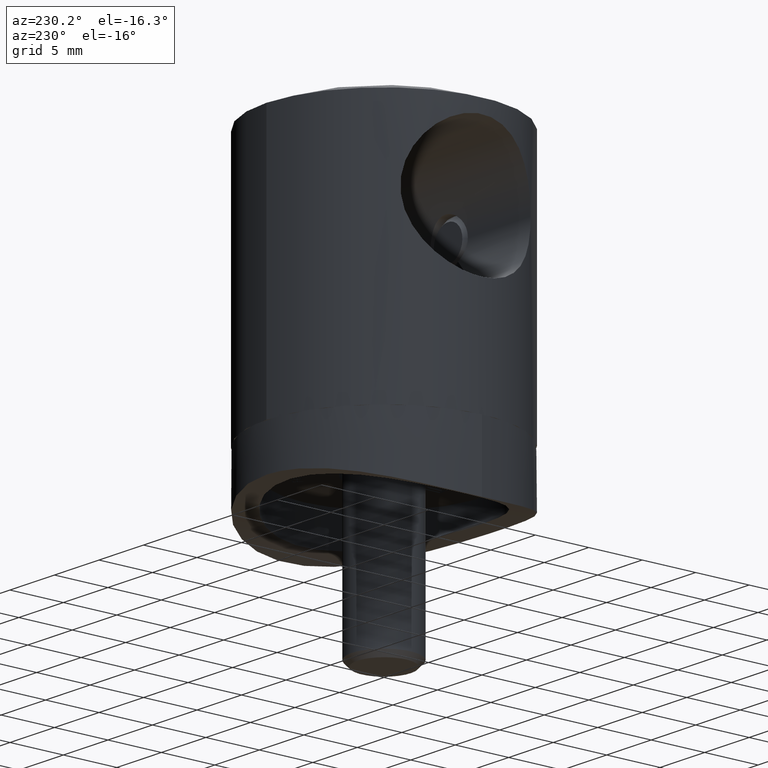
[diagram: clean part render]
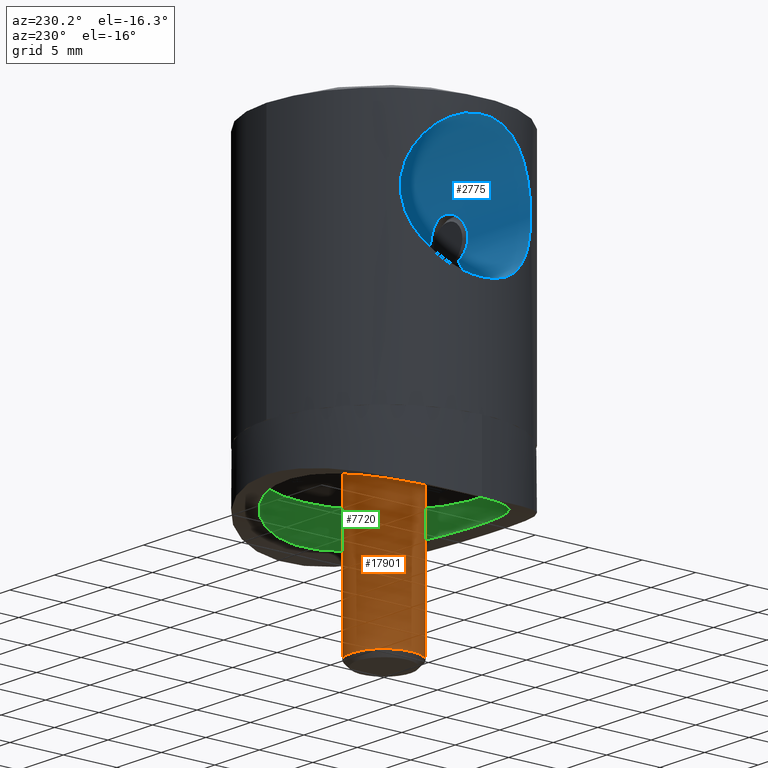
[diagram: same view with three faces highlighted in distinct colors, each labeled with its STEP entity id]
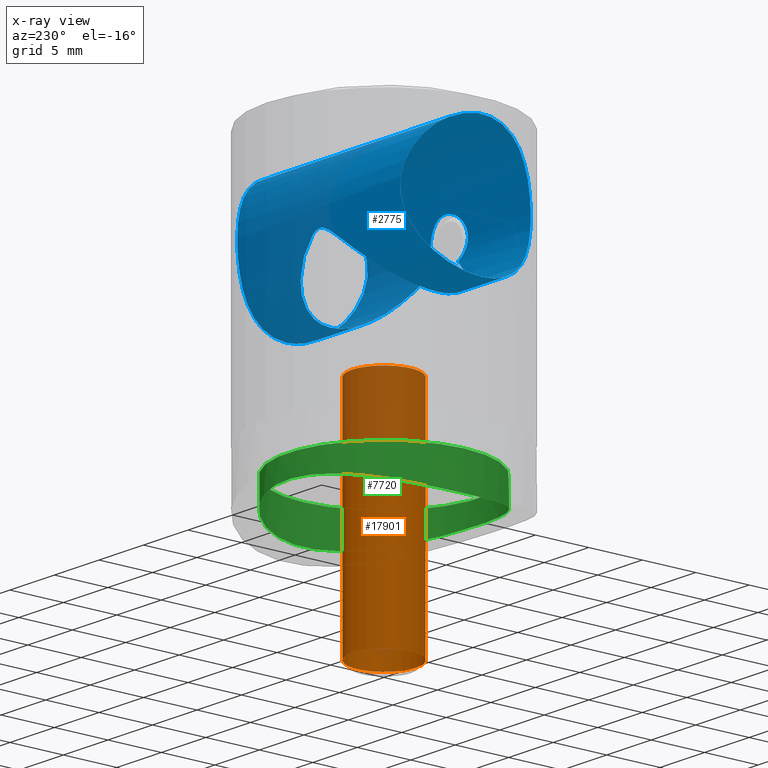
[diagram: x-ray of the same camera — body ghosted, the three highlighted faces saturated]
A machine part, auxiliary view with three faces highlighted in distinct colors.
The next image is the same camera in x-ray (body ghosted, the three faces saturated) — at least one of them is partly hidden behind the body in this view.
Their STEP definitions:

[orange] entity #17901 — the highlighted cylindrical surface (bore or boss wall) has radius 3 mm, axis along (-0, -0, -1).
#2862 = AXIS2_PLACEMENT_3D ( 'NONE', #20317, #20469, #10500 ) ;
#4823 = EDGE_LOOP ( 'NONE', ( #9274 ) ) ;
#9274 = ORIENTED_EDGE ( 'NONE', *, *, #15070, .T. ) ;
#9305 = AXIS2_PLACEMENT_3D ( 'NONE', #17931, #21491, #11526 ) ;
#9837 = CARTESIAN_POINT ( 'NONE',  ( -4.814824860968089633E-32, -11.99999999999999645, -3.000000000000008882 ) ) ;
#10500 = DIRECTION ( 'NONE',  ( 0.000000000000000000, 0.000000000000000000, -1.000000000000000000 ) ) ;
#11201 = CARTESIAN_POINT ( 'NONE',  ( 0.000000000000000000, 9.199999999999999289, -3.000000000000007994 ) ) ;
#11526 = DIRECTION ( 'NONE',  ( 0.000000000000000000, 0.000000000000000000, -1.000000000000000000 ) ) ;
#11891 = VERTEX_POINT ( 'NONE', #11201 ) ;
#11960 = AXIS2_PLACEMENT_3D ( 'NONE', #13069, #19777, #14968 ) ;
#12686 = FACE_OUTER_BOUND ( 'NONE', #21534, .T. ) ;
#13002 = CIRCLE ( 'NONE', #2862, 3.000000000000008882 ) ;
#13069 = CARTESIAN_POINT ( 'NONE',  ( 0.000000000000000000, 9.199999999999999289, -1.444447458290426890E-30 ) ) ;
#13454 = VERTEX_POINT ( 'NONE', #9837 ) ;
#13455 = CYLINDRICAL_SURFACE ( 'NONE', #9305, 3.000000000000008882 ) ;
#14149 = ORIENTED_EDGE ( 'NONE', *, *, #15822, .T. ) ;
#14968 = DIRECTION ( 'NONE',  ( 0.000000000000000000, 0.000000000000000000, -1.000000000000000000 ) ) ;
#15070 = EDGE_CURVE ( 'NONE', #13454, #13454, #13002, .T. ) ;
#15822 = EDGE_CURVE ( 'NONE', #11891, #11891, #18971, .T. ) ;
#17901 = ADVANCED_FACE ( 'NONE', ( #18413, #12686 ), #13455, .T. ) ;
#17931 = CARTESIAN_POINT ( 'NONE',  ( 4.814824860968089633E-32, -12.50000000000000355, 1.251854463851703304E-30 ) ) ;
#18413 = FACE_OUTER_BOUND ( 'NONE', #4823, .T. ) ;
#18971 = CIRCLE ( 'NONE', #11960, 3.000000000000007994 ) ;
#19777 = DIRECTION ( 'NONE',  ( 0.000000000000000000, -1.000000000000000000, 9.860761315262647568E-32 ) ) ;
#20317 = CARTESIAN_POINT ( 'NONE',  ( -4.814824860968089633E-32, -11.99999999999999645, 1.251854463851703304E-30 ) ) ;
#20469 = DIRECTION ( 'NONE',  ( -0.000000000000000000, 1.000000000000000000, -9.860761315262647568E-32 ) ) ;
#21491 = DIRECTION ( 'NONE',  ( 0.000000000000000000, -1.000000000000000000, 9.860761315262647568E-32 ) ) ;
#21534 = EDGE_LOOP ( 'NONE', ( #14149 ) ) ;

[blue] entity #2775 — the highlighted cylindrical surface (bore or boss wall) has radius 6.1 mm, axis along (1, 0, 0).
#620 = CARTESIAN_POINT ( 'NONE',  ( -9.404246883826662184, -5.706848822141821209, 18.56371187619918572 ) ) ;
#656 = CARTESIAN_POINT ( 'NONE',  ( 10.99999999999999822, 0.4119544153468484571, 10.29999999999999538 ) ) ;
#694 = CARTESIAN_POINT ( 'NONE',  ( -9.823416292433382324, -4.951332716768895637, 12.83170122485886644 ) ) ;
#727 = CARTESIAN_POINT ( 'NONE',  ( 9.369915670549829656, -5.762779879413711726, 18.41008764505288298 ) ) ;
#764 = CARTESIAN_POINT ( 'NONE',  ( -9.287385638928906673, -5.895229317790466439, 14.78182133336428628 ) ) ;
#799 = CARTESIAN_POINT ( 'NONE',  ( 9.154733802318576252, -6.098430320488784417, 16.82884321834455932 ) ) ;
#871 = B_SPLINE_CURVE_WITH_KNOTS ( 'NONE', 3,
 ( #17434, #17208, #14162, #10674, #14088, #17283, #18888, #9006, #20579, #12202, #20652, #9154, #694, #12337, #15836, #5893, #764, #2220, #17500, #8935, #8856, #10817, #3901, #15550, #10607, #5741, #620, #12483, #2364, #17358, #7416, #19022, #12416, #2434, #4559, #19392, #20857, #19243, #10889, #14374, #15899, #16124, #14305, #9438, #16187, #905, #7634, #1186, #9513, #16055, #6107, #2857, #10956, #12755, #19173, #4348, #21067, #17787, #9225, #11171, #11099, #12549, #4269, #2582, #5964, #14518, #2790, #17649, #4416, #975, #6178, #9301, #12825, #1106, #12623, #6248, #7706, #14446, #19314, #4477, #7837, #17713, #2647, #19461 ),
 .UNSPECIFIED., .T., .F.,
 ( 4, 2, 2, 2, 2, 2, 2, 2, 2, 2, 2, 2, 2, 2, 2, 2, 2, 2, 2, 2, 2, 2, 2, 2, 2, 2, 2, 2, 2, 2, 2, 2, 2, 2, 2, 2, 2, 2, 2, 2, 2, 4 ),
 ( 0.000000000000000000, 0.001216736210685103207, 0.002433472421370206414, 0.003650208632055309838, 0.004866944842740412829, 0.005475312948082965842, 0.006083681053425518855, 0.007300417264110619676, 0.008517153474795719631, 0.009733889685480822188, 0.01034225779082337433, 0.01095062589616592474, 0.01155899400150847689, 0.01216736210685102730, 0.01338409831753611945, 0.01399246642287865945, 0.01460083452822120119, 0.01581757073890628987, 0.01703430694959138028, 0.01764267505493392549, 0.01825104316027647069, 0.01946777937096155764, 0.02007614747630410285, 0.02068451558164664805, 0.02129288368698918979, 0.02190125179233173153, 0.02311798800301681847, 0.02433472421370190195, 0.02555146042438699236, 0.02676819663507207930, 0.02737656474041462451, 0.02798493284575716972, 0.02920166905644225666, 0.03041840526712734707, 0.03163514147781242708, 0.03285187768849751749, 0.03406861389918260097, 0.03528535010986768444, 0.03589371821521022965, 0.03650208632055277486, 0.03771882253123785833, 0.03893555874192294181 ),
 .UNSPECIFIED. ) ;
#873 = CARTESIAN_POINT ( 'NONE',  ( 10.88034175087271649, 1.629824696895270320, 22.28170272155429288 ) ) ;
#905 = CARTESIAN_POINT ( 'NONE',  ( -10.97324043956127859, 0.7936138331962050430, 22.45163438274044765 ) ) ;
#944 = CARTESIAN_POINT ( 'NONE',  ( 9.186070511604013333, 6.051171545997144463, 17.19691923427019020 ) ) ;
#960 = CARTESIAN_POINT ( 'NONE',  ( 0.7661013249264022607, 5.954079012048654640, 15.07060193137590609 ) ) ;
#975 = CARTESIAN_POINT ( 'NONE',  ( -9.542046598227903687, 5.475560630793908423, 13.68158294172838296 ) ) ;
#1009 = CARTESIAN_POINT ( 'NONE',  ( 10.34725143670187641, -3.748763762359414553, 11.57160730895324185 ) ) ;
#1026 = CARTESIAN_POINT ( 'NONE',  ( -5.833782839444026536, -1.417998730812822794, 10.46342172039293494 ) ) ;
#1094 = CARTESIAN_POINT ( 'NONE',  ( 0.1664089112603113485, 5.998586653625032739, 15.29203420907048283 ) ) ;
#1101 = CARTESIAN_POINT ( 'NONE',  ( 1.811792167402790366, -6.006687632219922079, 17.46737169745549778 ) ) ;
#1106 = CARTESIAN_POINT ( 'NONE',  ( -10.23201466657478242, 4.049143934664146904, 11.82103939613443977 ) ) ;
#1168 = CARTESIAN_POINT ( 'NONE',  ( -3.636098034188537387, -4.784718748379321873, 12.60180303829232606 ) ) ;
#1179 = CARTESIAN_POINT ( 'NONE',  ( 1.404888031916986746, -5.894433118325748566, 17.97576650795928899 ) ) ;
#1186 = CARTESIAN_POINT ( 'NONE',  ( -10.91341900764948925, 1.391812421171598091, 22.34254261676390385 ) ) ;
#1194 = CARTESIAN_POINT ( 'NONE',  ( 1.264911064067336444, -5.865151319446074041, 14.72369453857597676 ) ) ;
#1240 = CARTESIAN_POINT ( 'NONE',  ( 2.678942672394189817, 5.378707453403088756, 13.50570936899195118 ) ) ;
#1315 = CARTESIAN_POINT ( 'NONE',  ( -2.061975679411623741, -6.086996045277349054, 15.98735336462845247 ) ) ;
#1397 = CARTESIAN_POINT ( 'NONE',  ( -2.088524507727446800, -6.096034286308175787, 16.64511596994807263 ) ) ;
#1442 = CARTESIAN_POINT ( 'NONE',  ( 5.902884294256615760, 1.155421326008484684, 10.39550549845728789 ) ) ;
#1854 = B_SPLINE_CURVE_WITH_KNOTS ( 'NONE', 3,
 ( #8890, #656, #2181, #5405, #2331, #2257, #3871, #20543, #2103, #5635, #17249, #7310, #18924, #10642, #12016, #13763, #7089, #3719, #15366, #17468, #2551, #944, #5776, #7382, #7599, #17396, #15721, #10994, #12587, #20897, #17612, #7452, #4159, #16018, #15798, #2615, #19059, #20970, #12660, #873, #14055, #9047, #17320, #10708, #15873, #10853, #9120, #5853, #18989, #20686, #14273, #7671, #9337, #4312, #15942, #7528, #19133, #4085, #12377, #10784, #727, #20757, #5931, #17546, #799, #6004, #19212, #9192, #14335, #9268, #2401, #12449, #20828, #19282, #1009, #14204, #2475, #2685, #4386, #14127, #19353, #17754, #14555, #4596 ),
 .UNSPECIFIED., .T., .F.,
 ( 4, 2, 2, 2, 2, 2, 2, 2, 2, 2, 2, 2, 2, 2, 2, 2, 2, 2, 2, 2, 2, 2, 2, 2, 2, 2, 2, 2, 2, 2, 2, 2, 2, 2, 2, 2, 2, 2, 2, 2, 2, 4 ),
 ( 0.000000000000000000, 0.001216736210685062875, 0.002433472421370125750, 0.003650208632055187540, 0.004866944842740248897, 0.005475312948082781093, 0.006083681053425311555, 0.007300417264110382019, 0.008517153474795452484, 0.009733889685480523815, 0.01034225779082305861, 0.01095062589616559688, 0.01155899400150813168, 0.01216736210685066648, 0.01338409831753574648, 0.01399246642287828822, 0.01460083452822082996, 0.01581757073890592905, 0.01703430694959102640, 0.01764267505493357507, 0.01825104316027612375, 0.01946777937096122110, 0.02007614747630376978, 0.02068451558164631846, 0.02129288368698886713, 0.02190125179233141581, 0.02311798800301651316, 0.02433472421370161051, 0.02555146042438671133, 0.02676819663507180522, 0.02737656474041436083, 0.02798493284575690951, 0.02920166905644202421, 0.03041840526712714238, 0.03163514147781225361, 0.03285187768849736484, 0.03406861389918248301, 0.03528535010986760118, 0.03589371821521016026, 0.03650208632055271241, 0.03771882253123782364, 0.03893555874192293487 ),
 .UNSPECIFIED. ) ;
#2005 = CARTESIAN_POINT ( 'NONE',  ( -2.513309521868856145, -5.457960451530768253, 13.65982984228988961 ) ) ;
#2103 = CARTESIAN_POINT ( 'NONE',  ( 10.23523940358923667, 4.040947010503002979, 11.81391594917569066 ) ) ;
#2154 = CARTESIAN_POINT ( 'NONE',  ( -10.99999999999999822, 0.000000000000000000, 16.39999999999999858 ) ) ;
#2181 = CARTESIAN_POINT ( 'NONE',  ( 10.97695157601236104, 0.8154917404544913540, 10.34128971045530676 ) ) ;
#2220 = CARTESIAN_POINT ( 'NONE',  ( -9.182824149353340459, -6.056814456260994461, 15.57100690659151532 ) ) ;
#2257 = CARTESIAN_POINT ( 'NONE',  ( 10.66142031955350156, 2.734231561115276765, 10.93252429363031553 ) ) ;
#2331 = CARTESIAN_POINT ( 'NONE',  ( 10.82349510489186706, 1.998464203924865901, 10.62285073282916592 ) ) ;
#2364 = CARTESIAN_POINT ( 'NONE',  ( -9.647514933004700310, -5.290201444760916694, 19.46247388205960860 ) ) ;
#2401 = CARTESIAN_POINT ( 'NONE',  ( 9.648512081601323231, -5.288360497444984709, 13.33447340568116957 ) ) ;
#2434 = CARTESIAN_POINT ( 'NONE',  ( -10.22984273932647881, -4.054541376369452443, 20.97407856064159404 ) ) ;
#2475 = CARTESIAN_POINT ( 'NONE',  ( 10.55980625606058787, -3.085983629272203377, 11.13443178477246676 ) ) ;
#2504 = CARTESIAN_POINT ( 'NONE',  ( 1.841419818001106767, -6.014671674399155954, 15.36712081795135454 ) ) ;
#2551 = CARTESIAN_POINT ( 'NONE',  ( 9.159751136064906873, 6.090938158330286178, 16.79016624204475150 ) ) ;
#2582 = CARTESIAN_POINT ( 'NONE',  ( -9.182846360408928987, 6.056809541581210432, 17.23151101186771328 ) ) ;
#2615 = CARTESIAN_POINT ( 'NONE',  ( 10.56075521959791885, 3.096678220883582355, 21.67043277127627832 ) ) ;
#2634 = CARTESIAN_POINT ( 'NONE',  ( 1.451721868584812558, 5.824105846830126332, 14.58084361014226005 ) ) ;
#2647 = CARTESIAN_POINT ( 'NONE',  ( -11.00000000000000000, 0.4119544153468409076, 10.29999999999999893 ) ) ;
#2685 = CARTESIAN_POINT ( 'NONE',  ( 10.65567692228155039, -2.736668129976453034, 10.94471346896226294 ) ) ;
#2707 = CARTESIAN_POINT ( 'NONE',  ( -5.404072180346550347, 2.634859264747150043, 10.88524980136711129 ) ) ;
#2731 = CARTESIAN_POINT ( 'NONE',  ( 1.600712823535374696, -5.792730449506010793, 14.47030434767153295 ) ) ;
#2773 = CARTESIAN_POINT ( 'NONE',  ( -5.781654944826906117, -1.616613241820927360, 10.51464520929871505 ) ) ;
#2775 = ADVANCED_FACE ( 'NONE', ( #21539, #8025, #9591 ), #5152, .F. ) ;
#2790 = CARTESIAN_POINT ( 'NONE',  ( -9.179891148193682682, 6.061232615172921889, 15.60271832034515604 ) ) ;
#2841 = CARTESIAN_POINT ( 'NONE',  ( -4.394411648217268151, -4.088980755355672514, 11.87010875707530033 ) ) ;
#2850 = CARTESIAN_POINT ( 'NONE',  ( -2.098627926073697303, -6.099527671785687666, 16.53369559396773170 ) ) ;
#2857 = CARTESIAN_POINT ( 'NONE',  ( -10.66475748890668918, 2.721688767266851716, 21.87398493998483318 ) ) ;
#2863 = EDGE_CURVE ( 'NONE', #14779, #14779, #1854, .T. ) ;
#2867 = CARTESIAN_POINT ( 'NONE',  ( 2.519141720066565782, -5.455323266381119751, 13.65448253211364005 ) ) ;
#2916 = CARTESIAN_POINT ( 'NONE',  ( -5.566520937633480770, 2.276123881821266348, 10.72588678268597562 ) ) ;
#2999 = CARTESIAN_POINT ( 'NONE',  ( -0.4395679350782021877, -5.740271456021377894, 18.46502818225347653 ) ) ;
#3168 = EDGE_LOOP ( 'NONE', ( #16275 ) ) ;
#3589 = B_SPLINE_CURVE_WITH_KNOTS ( 'NONE', 3,
 ( #17640, #9363, #16047, #2504, #20851, #10881, #7626, #19236, #11304, #16403, #9718, #16325, #6384, #12970, #6454, #1101, #14582, #17857, #1179, #17994, #21060, #9506, #4761, #18073, #2999, #12749, #8113, #21125, #9428, #14441, #19672, #11163, #21343, #7830, #11381, #1397, #2850, #8047, #6172, #1315, #12894, #14655, #11093, #21278 ),
 .UNSPECIFIED., .F., .F.,
 ( 4, 2, 2, 2, 2, 2, 2, 2, 2, 2, 2, 2, 2, 2, 2, 2, 2, 2, 2, 2, 2, 4 ),
 ( 0.001359203220729802075, 0.002016167456919628568, 0.002673131693109455278, 0.003001613811204363429, 0.003330095929299271146, 0.003658578047394179730, 0.003987060165489087447, 0.004315542283583996032, 0.004644024401678903749, 0.005300988637868728724, 0.005957952874058551965, 0.006614917110248376940, 0.007271881346438201915, 0.007928845582628024288, 0.008585809818817848396, 0.008914291936912762185, 0.009242774055007674239, 0.009571256173102586293, 0.009899738291197498347, 0.01022822040929241040, 0.01055670252738732245, 0.01187063099976695853 ),
 .UNSPECIFIED. ) ;
#3719 = CARTESIAN_POINT ( 'NONE',  ( 9.182824149353340459, 6.056814456260994461, 15.57100690659150999 ) ) ;
#3813 = CARTESIAN_POINT ( 'NONE',  ( 5.995776451328667989, 0.3099123428654444456, 10.30415429417565676 ) ) ;
#3871 = CARTESIAN_POINT ( 'NONE',  ( 10.56516037208887582, 3.081656113116342688, 11.12078256614181626 ) ) ;
#3901 = CARTESIAN_POINT ( 'NONE',  ( -9.205781148332752295, -6.021279925512385667, 17.39743835238009950 ) ) ;
#3947 = CARTESIAN_POINT ( 'NONE',  ( -1.019037226394219342, 5.915345745975993275, 14.90492701504486561 ) ) ;
#4035 = ORIENTED_EDGE ( 'NONE', *, *, #2863, .T. ) ;
#4085 = CARTESIAN_POINT ( 'NONE',  ( 9.655843362379464168, -5.275096090437352281, 19.48856493924065703 ) ) ;
#4159 = CARTESIAN_POINT ( 'NONE',  ( 10.05375444080992331, 4.465900659990698962, 20.55976037867542061 ) ) ;
#4269 = CARTESIAN_POINT ( 'NONE',  ( -9.262708643723195578, 5.933349042232535453, 17.83071913368763717 ) ) ;
#4312 = CARTESIAN_POINT ( 'NONE',  ( 10.35569616419128813, -3.725345759223086972, 21.24638000732665333 ) ) ;
#4331 = CARTESIAN_POINT ( 'NONE',  ( 2.385812162248570178, 5.514868211023974176, 13.77669042793656828 ) ) ;
#4348 = CARTESIAN_POINT ( 'NONE',  ( -10.00363043224886361, 4.584473309947989961, 20.44285449540664956 ) ) ;
#4374 = CARTESIAN_POINT ( 'NONE',  ( 6.002658118569156542, -0.1160880103349958004, 10.29738546987162984 ) ) ;
#4386 = CARTESIAN_POINT ( 'NONE',  ( 10.70011745089923139, -2.557856534737481979, 10.85862283480468271 ) ) ;
#4401 = CARTESIAN_POINT ( 'NONE',  ( -3.301266255638071190, 5.020780134672565787, 12.92163397531766478 ) ) ;
#4416 = CARTESIAN_POINT ( 'NONE',  ( -9.357734529854724315, 5.784913307303539476, 14.42355532554418573 ) ) ;
#4465 = CARTESIAN_POINT ( 'NONE',  ( 1.772379662049494264, 5.734664387072843539, 14.31597426755820379 ) ) ;
#4477 = CARTESIAN_POINT ( 'NONE',  ( -10.82153467679175840, 2.008721309774863073, 10.62652596293655805 ) ) ;
#4537 = CARTESIAN_POINT ( 'NONE',  ( -5.345947242857096882, -2.730846562301733282, 10.94208900441108945 ) ) ;
#4559 = CARTESIAN_POINT ( 'NONE',  ( -10.34600107115467971, -3.752229823401756370, 21.22572781584415935 ) ) ;
#4596 = CARTESIAN_POINT ( 'NONE',  ( 11.00000000000000000, 2.981555974335137194E-16, 10.29999999999999716 ) ) ;
#4761 = CARTESIAN_POINT ( 'NONE',  ( 0.2203795295326185788, -5.727184751572133692, 18.49984638675084980 ) ) ;
#5152 = CYLINDRICAL_SURFACE ( 'NONE', #20609, 6.100000000000001421 ) ;
#5405 = CARTESIAN_POINT ( 'NONE',  ( 10.88928147642777411, 1.606873239554577060, 10.50161415780659269 ) ) ;
#5635 = CARTESIAN_POINT ( 'NONE',  ( 10.05928916644563031, 4.453430819430040266, 12.22689457929945611 ) ) ;
#5648 = CARTESIAN_POINT ( 'NONE',  ( -4.805692951973780325, 3.597158703547618686, 11.47007651703236775 ) ) ;
#5741 = CARTESIAN_POINT ( 'NONE',  ( -9.362046769079295672, -5.775541901457289740, 18.37322836746237797 ) ) ;
#5776 = CARTESIAN_POINT ( 'NONE',  ( 9.205781148332754071, 6.021279925512389219, 17.39743835238009595 ) ) ;
#5853 = CARTESIAN_POINT ( 'NONE',  ( 10.91341900764949102, -1.391812421171597647, 22.34254261676390740 ) ) ;
#5860 = CARTESIAN_POINT ( 'NONE',  ( 5.853872938890667399, -1.378049250078571264, 10.44371644003604871 ) ) ;
#5893 = CARTESIAN_POINT ( 'NONE',  ( -9.364778303763204192, -5.773464504138156705, 14.39169695136983584 ) ) ;
#5931 = CARTESIAN_POINT ( 'NONE',  ( 9.262708643723190249, -5.933349042232532788, 17.83071913368764072 ) ) ;
#5964 = CARTESIAN_POINT ( 'NONE',  ( -9.154733802318572700, 6.098430320488782641, 16.82884321834455932 ) ) ;
#6004 = CARTESIAN_POINT ( 'NONE',  ( 9.152699255644686005, -6.101483401673095663, 16.01703893293870706 ) ) ;
#6020 = CARTESIAN_POINT ( 'NONE',  ( -4.694700180960722946, 3.740536793395724757, 11.57822801960869974 ) ) ;
#6093 = CARTESIAN_POINT ( 'NONE',  ( -1.992287078379852749, 5.661893515845267899, 14.12526147274774857 ) ) ;
#6107 = CARTESIAN_POINT ( 'NONE',  ( -10.78664010805816176, 2.164383443384269690, 22.10666010265788017 ) ) ;
#6162 = CARTESIAN_POINT ( 'NONE',  ( 0.05797874900376040475, 6.000668141377463627, 15.30364017751332817 ) ) ;
#6172 = CARTESIAN_POINT ( 'NONE',  ( -2.093736081883823541, -6.097828132484488073, 16.20432126434826259 ) ) ;
#6178 = CARTESIAN_POINT ( 'NONE',  ( -9.648512081601321455, 5.288360497444982045, 13.33447340568116957 ) ) ;
#6185 = CARTESIAN_POINT ( 'NONE',  ( 4.877393601296916792, -3.513269415216959679, 11.40038333103254153 ) ) ;
#6205 = VERTEX_POINT ( 'NONE', #16153 ) ;
#6233 = CARTESIAN_POINT ( 'NONE',  ( -0.4667924620966336646, 5.984804324095905237, 15.21602659811568259 ) ) ;
#6248 = CARTESIAN_POINT ( 'NONE',  ( -10.50807610336931397, 3.257306727324836171, 11.23869160819103996 ) ) ;
#6259 = CARTESIAN_POINT ( 'NONE',  ( 4.412337729448108981, -4.069675251550910033, 11.85271625671014029 ) ) ;
#6384 = CARTESIAN_POINT ( 'NONE',  ( 2.025586993270402925, -6.074695222667569894, 16.96475893698508131 ) ) ;
#6454 = CARTESIAN_POINT ( 'NONE',  ( 1.912532000604389992, -6.037837701241856259, 17.27412501683415158 ) ) ;
#6750 = EDGE_CURVE ( 'NONE', #11536, #14231, #8920, .T. ) ;
#7089 = CARTESIAN_POINT ( 'NONE',  ( 9.287385638928908449, 5.895229317790466439, 14.78182133336428272 ) ) ;
#7310 = CARTESIAN_POINT ( 'NONE',  ( 9.882311817479488170, 4.833099761158376140, 12.67314814702374726 ) ) ;
#7321 = CARTESIAN_POINT ( 'NONE',  ( -1.357182424432292978, 5.847034122529607636, 14.65679877961454736 ) ) ;
#7382 = CARTESIAN_POINT ( 'NONE',  ( 9.257007648696454538, 5.942224152987879648, 17.79307836241350316 ) ) ;
#7416 = CARTESIAN_POINT ( 'NONE',  ( -9.876850331807261796, -4.844238823729226873, 20.11236126726327456 ) ) ;
#7452 = CARTESIAN_POINT ( 'NONE',  ( 9.994595874194322604, 4.596398108278324734, 20.41514637220333839 ) ) ;
#7528 = CARTESIAN_POINT ( 'NONE',  ( 10.00363043224886717, -4.584473309947989073, 20.44285449540664246 ) ) ;
#7599 = CARTESIAN_POINT ( 'NONE',  ( 9.288523322039354824, 5.893058497745284896, 17.98819897613593710 ) ) ;
#7626 = CARTESIAN_POINT ( 'NONE',  ( 2.061537772462799012, -6.086847471753373817, 15.98519257118675974 ) ) ;
#7634 = CARTESIAN_POINT ( 'NONE',  ( -10.95673552425201969, 0.9948883876327735409, 22.42172331346568015 ) ) ;
#7671 = CARTESIAN_POINT ( 'NONE',  ( 10.66475748890669095, -2.721688767266846387, 21.87398493998482962 ) ) ;
#7688 = CARTESIAN_POINT ( 'NONE',  ( 4.769559754092274950, 3.644961848606244281, 11.50529522117300019 ) ) ;
#7692 = EDGE_LOOP ( 'NONE', ( #12053, #15998 ) ) ;
#7706 = CARTESIAN_POINT ( 'NONE',  ( -10.55980625606059320, 3.085983629272203377, 11.13443178477245787 ) ) ;
#7757 = CARTESIAN_POINT ( 'NONE',  ( -2.806376894923880094, -5.313295236498645657, 13.38721115035932741 ) ) ;
#7822 = CARTESIAN_POINT ( 'NONE',  ( -5.998444786203076085, 0.2514064993559285144, 10.30152971741273937 ) ) ;
#7830 = CARTESIAN_POINT ( 'NONE',  ( -2.024966505829224772, -6.074488205061602919, 16.96693568420365850 ) ) ;
#7837 = CARTESIAN_POINT ( 'NONE',  ( -10.88669551587766016, 1.625843207734907425, 10.50636876088165117 ) ) ;
#7893 = CARTESIAN_POINT ( 'NONE',  ( -2.736985555426589389, 5.349345952611728627, 13.45182069038133754 ) ) ;
#8025 = FACE_OUTER_BOUND ( 'NONE', #14962, .T. ) ;
#8047 = CARTESIAN_POINT ( 'NONE',  ( -2.101105937947260305, -6.100380710190159483, 16.31358517797543328 ) ) ;
#8113 = CARTESIAN_POINT ( 'NONE',  ( -1.052738289646268255, -5.820553186839066306, 18.22989329272534675 ) ) ;
#8229 = CARTESIAN_POINT ( 'NONE',  ( 5.994764174703636428, -0.3277982703724416913, 10.30515088502910714 ) ) ;
#8725 = CARTESIAN_POINT ( 'NONE',  ( -1.907797727893162376, -5.697926366024423039, 14.20193268732672642 ) ) ;
#8801 = DIRECTION ( 'NONE',  ( 0.000000000000000000, 0.000000000000000000, -1.000000000000000000 ) ) ;
#8856 = CARTESIAN_POINT ( 'NONE',  ( -9.159751136064906873, -6.090938158330281738, 16.79016624204474795 ) ) ;
#8890 = CARTESIAN_POINT ( 'NONE',  ( 11.00000000000000000, 2.981555974335137194E-16, 10.29999999999999716 ) ) ;
#8920 = B_SPLINE_CURVE_WITH_KNOTS ( 'NONE', 3,
 ( #17012, #16933, #8725, #2005, #7757, #20623, #1168, #19298, #14504, #2841, #17698, #11015, #19374, #4537, #15595, #9419, #14430, #2773, #1026, #11081, #14354, #19517, #21116, #7822, #16170, #14293, #12678, #2916, #2707, #11155, #15960, #5648, #6020, #17258, #8983, #17633, #4401, #7893, #9567, #6093, #21052, #16037, #7321, #3947, #12812, #6233, #18936, #6162, #1094, #12607, #12741, #960, #10940, #9357, #2634, #4465, #17847, #4331, #1240, #16107, #17773, #19446, #9496, #21195, #7688, #11218, #12882, #20988, #16246, #10137, #1442, #20358, #3813, #4374, #8229, #15369, #5860, #12762, #19471, #16274, #6185, #10964, #6259, #17721, #14383, #12911, #14456, #14598, #2867, #17872, #2731, #1194 ),
 .UNSPECIFIED., .F., .F.,
 ( 4, 2, 2, 2, 2, 2, 2, 2, 2, 2, 2, 2, 2, 2, 2, 2, 2, 2, 2, 2, 2, 2, 2, 2, 2, 2, 2, 2, 2, 2, 2, 2, 2, 2, 2, 2, 2, 2, 2, 2, 2, 2, 2, 2, 2, 4 ),
 ( 0.02322871737572002396, 0.02450615635311004931, 0.02578359533050007812, 0.02706103430789010347, 0.02769975379658511788, 0.02833847328528013229, 0.02961591226267015764, 0.03025463175136516858, 0.03089335124006018646, 0.03153207072875520434, 0.03217079021745021528, 0.03280950970614522622, 0.03344822919484024409, 0.03472566817223027291, 0.03600310714962030173, 0.03664182663831531267, 0.03728054612701032361, 0.03855798510440035243, 0.03983542408179038818, 0.04111286305918041700, 0.04175158254787543488, 0.04239030203657044582, 0.04302902152526545676, 0.04366774101396046770, 0.04398710075830797317, 0.04430646050265547864, 0.04494517999135048958, 0.04558389948004550052, 0.04622261896874051146, 0.04750005794613053334, 0.04877749692352056216, 0.05005493590091059097, 0.05069365538960560191, 0.05133237487830061285, 0.05260981385569063473, 0.05388725283308066355, 0.05452597232177568143, 0.05516469181047069237, 0.05644213078786071425, 0.05771956976525073613, 0.05899700874264075801, 0.05963572823133576895, 0.06027444772003077988, 0.06155188669742081564, 0.06282932567481083752, 0.06410676465220085940 ),
 .UNSPECIFIED. ) ;
#8935 = CARTESIAN_POINT ( 'NONE',  ( -9.153253516029334236, -6.100651666123670935, 16.58324285485192817 ) ) ;
#8983 = CARTESIAN_POINT ( 'NONE',  ( -4.101423522932064358, 4.392637027943437467, 12.15424527299565938 ) ) ;
#9006 = CARTESIAN_POINT ( 'NONE',  ( -10.35109153156164119, -3.738197719850758105, 11.56340833636307686 ) ) ;
#9047 = CARTESIAN_POINT ( 'NONE',  ( 10.97560464290935656, 0.8344455402437473968, 22.45628732122499116 ) ) ;
#9120 = CARTESIAN_POINT ( 'NONE',  ( 10.95673552425202502, -0.9948883876327746512, 22.42172331346568015 ) ) ;
#9154 = CARTESIAN_POINT ( 'NONE',  ( -9.882311817479495275, -4.833099761158379692, 12.67314814702374726 ) ) ;
#9192 = CARTESIAN_POINT ( 'NONE',  ( 9.282739979215675064, -5.902514784919364210, 14.80798300707637516 ) ) ;
#9225 = CARTESIAN_POINT ( 'NONE',  ( -9.548936329887265373, 5.463500988949929749, 19.14152131049769423 ) ) ;
#9268 = CARTESIAN_POINT ( 'NONE',  ( 9.542046598227901910, -5.475560630793906647, 13.68158294172837763 ) ) ;
#9301 = CARTESIAN_POINT ( 'NONE',  ( -9.875328383823168465, 4.851642139667729836, 12.68169681171465868 ) ) ;
#9337 = CARTESIAN_POINT ( 'NONE',  ( 10.56848592839725320, -3.070138311554861055, 21.68581601544170567 ) ) ;
#9357 = CARTESIAN_POINT ( 'NONE',  ( 1.286232487806434843, 5.863110917657483157, 14.71184017309867897 ) ) ;
#9363 = CARTESIAN_POINT ( 'NONE',  ( 1.439601833364671624, -5.902826099658819103, 14.85551316707756442 ) ) ;
#9419 = CARTESIAN_POINT ( 'NONE',  ( -5.589578985382193999, -2.189955046844229258, 10.70323267675174073 ) ) ;
#9428 = CARTESIAN_POINT ( 'NONE',  ( -1.560745191584893110, -5.934707486735853799, 17.82154701282365039 ) ) ;
#9438 = CARTESIAN_POINT ( 'NONE',  ( -11.00042874672050530, 0.1790107633385689678, 22.50077315433566838 ) ) ;
#9496 = CARTESIAN_POINT ( 'NONE',  ( 4.306318209007755193, 4.193255255899520861, 11.95575110796323948 ) ) ;
#9506 = CARTESIAN_POINT ( 'NONE',  ( 0.4426080404586248407, -5.740526841056891705, 18.46432109747692252 ) ) ;
#9513 = CARTESIAN_POINT ( 'NONE',  ( -10.88660539605092836, 1.587461163400300856, 22.29327081037905955 ) ) ;
#9567 = CARTESIAN_POINT ( 'NONE',  ( -2.446229407336029560, 5.488255245201746568, 13.72139055253270357 ) ) ;
#9591 = FACE_BOUND ( 'NONE', #7692, .T. ) ;
#9718 = CARTESIAN_POINT ( 'NONE',  ( 2.088860761884514528, -6.096149780478175018, 16.64231454198937143 ) ) ;
#10137 = CARTESIAN_POINT ( 'NONE',  ( 5.807717456397283762, 1.561183395793774409, 10.48908252357609783 ) ) ;
#10607 = CARTESIAN_POINT ( 'NONE',  ( -9.288523322039358376, -5.893058497745287561, 17.98819897613593000 ) ) ;
#10642 = CARTESIAN_POINT ( 'NONE',  ( 9.653232611197093860, 5.279764526992453355, 13.31975750584613039 ) ) ;
#10674 = CARTESIAN_POINT ( 'NONE',  ( -10.88928147642777589, -1.606873239554577726, 10.50161415780659802 ) ) ;
#10708 = CARTESIAN_POINT ( 'NONE',  ( 11.00042874672051063, -0.1790107633385678576, 22.50077315433566838 ) ) ;
#10784 = CARTESIAN_POINT ( 'NONE',  ( 9.411849063529514225, -5.694304542915052281, 18.59632450029121031 ) ) ;
#10817 = CARTESIAN_POINT ( 'NONE',  ( -9.186070511604009781, -6.051171545997144463, 17.19691923427018310 ) ) ;
#10853 = CARTESIAN_POINT ( 'NONE',  ( 10.97324043956127326, -0.7936138331962032666, 22.45163438274045120 ) ) ;
#10881 = CARTESIAN_POINT ( 'NONE',  ( 2.036667523308049788, -6.078409108426343188, 15.87655080622308112 ) ) ;
#10889 = CARTESIAN_POINT ( 'NONE',  ( -10.81560744150687903, -2.015142880694786420, 22.16107234963544670 ) ) ;
#10940 = CARTESIAN_POINT ( 'NONE',  ( 0.9432332628313666589, 5.927965473695979703, 14.95598525748997787 ) ) ;
#10956 = CARTESIAN_POINT ( 'NONE',  ( -10.56848592839724965, 3.070138311554862831, 21.68581601544170567 ) ) ;
#10964 = CARTESIAN_POINT ( 'NONE',  ( 4.532680814993553575, -3.935455781845075496, 11.73582858438164855 ) ) ;
#10994 = CARTESIAN_POINT ( 'NONE',  ( 9.541437754094058477, 5.476577152540516913, 19.11591475201606372 ) ) ;
#11015 = CARTESIAN_POINT ( 'NONE',  ( -4.859172907459100799, -3.538186065332967534, 11.41815865016066489 ) ) ;
#11081 = CARTESIAN_POINT ( 'NONE',  ( -5.918360028311646204, -1.008343787436283723, 10.38028863841232052 ) ) ;
#11093 = CARTESIAN_POINT ( 'NONE',  ( -1.612631634144326753, -5.940142666188638287, 14.98607845750716372 ) ) ;
#11099 = CARTESIAN_POINT ( 'NONE',  ( -9.369915670549831432, 5.762779879413712614, 18.41008764505287942 ) ) ;
#11155 = CARTESIAN_POINT ( 'NONE',  ( -5.120137208872969303, 3.133817932039141052, 11.16307118213196325 ) ) ;
#11163 = CARTESIAN_POINT ( 'NONE',  ( -1.911809271838413427, -6.037607798358131994, 17.27571714819775295 ) ) ;
#11171 = CARTESIAN_POINT ( 'NONE',  ( -9.411849063529510673, 5.694304542915054945, 18.59632450029121387 ) ) ;
#11218 = CARTESIAN_POINT ( 'NONE',  ( 4.985726138990400180, 3.343199364776149540, 11.29442463996198853 ) ) ;
#11304 = CARTESIAN_POINT ( 'NONE',  ( 2.100993732706287975, -6.100342088836495869, 16.31110079149022596 ) ) ;
#11381 = CARTESIAN_POINT ( 'NONE',  ( -2.051653251407411283, -6.083500675143978853, 16.86123247293653904 ) ) ;
#11536 = VERTEX_POINT ( 'NONE', #15301 ) ;
#12016 = CARTESIAN_POINT ( 'NONE',  ( 9.547459403721239468, 5.466075739822141344, 13.66354435040356030 ) ) ;
#12053 = ORIENTED_EDGE ( 'NONE', *, *, #6750, .T. ) ;
#12202 = CARTESIAN_POINT ( 'NONE',  ( -10.05928916644563031, -4.453430819430041154, 12.22689457929946322 ) ) ;
#12225 = EDGE_CURVE ( 'NONE', #6205, #6205, #871, .T. ) ;
#12337 = CARTESIAN_POINT ( 'NONE',  ( -9.653232611197097413, -5.279764526992454243, 13.31975750584613394 ) ) ;
#12377 = CARTESIAN_POINT ( 'NONE',  ( 9.548936329887270702, -5.463500988949930637, 19.14152131049769423 ) ) ;
#12416 = CARTESIAN_POINT ( 'NONE',  ( -10.05375444080991976, -4.465900659990696298, 20.55976037867542416 ) ) ;
#12449 = CARTESIAN_POINT ( 'NONE',  ( 9.875328383823170242, -4.851642139667734277, 12.68169681171466756 ) ) ;
#12483 = CARTESIAN_POINT ( 'NONE',  ( -9.541437754094058477, -5.476577152540516025, 19.11591475201607437 ) ) ;
#12549 = CARTESIAN_POINT ( 'NONE',  ( -9.295422111209903804, 5.882183215968441736, 18.02788356252802870 ) ) ;
#12587 = CARTESIAN_POINT ( 'NONE',  ( 9.647514933004712745, 5.290201444760913141, 19.46247388205959439 ) ) ;
#12607 = CARTESIAN_POINT ( 'NONE',  ( 0.3734069377213762309, 5.989265482983431532, 15.24270616986796156 ) ) ;
#12623 = CARTESIAN_POINT ( 'NONE',  ( -10.34725143670187464, 3.748763762359419438, 11.57160730895324363 ) ) ;
#12660 = CARTESIAN_POINT ( 'NONE',  ( 10.81560744150688258, 2.015142880694788641, 22.16107234963543959 ) ) ;
#12678 = CARTESIAN_POINT ( 'NONE',  ( -5.823669825702251224, 1.500588229899904702, 10.47340437581736872 ) ) ;
#12741 = CARTESIAN_POINT ( 'NONE',  ( 0.4751520217798637646, 5.981949731203163090, 15.20485714661243470 ) ) ;
#12749 = CARTESIAN_POINT ( 'NONE',  ( -0.8545190373027443664, -5.786855726936493305, 18.33063683222330909 ) ) ;
#12755 = CARTESIAN_POINT ( 'NONE',  ( -10.35569616419128636, 3.725345759223086084, 21.24638000732666754 ) ) ;
#12762 = CARTESIAN_POINT ( 'NONE',  ( 5.613096513743268012, -2.158702306415071881, 10.68018025331066667 ) ) ;
#12812 = CARTESIAN_POINT ( 'NONE',  ( -0.8428342894105500527, 5.943518180419834707, 15.02367610893893612 ) ) ;
#12825 = CARTESIAN_POINT ( 'NONE',  ( -9.996537732736376469, 4.599883052709779818, 12.37464005127818467 ) ) ;
#12882 = CARTESIAN_POINT ( 'NONE',  ( 5.089123062623673199, 3.183904618875595727, 11.19339108233793390 ) ) ;
#12894 = CARTESIAN_POINT ( 'NONE',  ( -2.037224136285149090, -6.078595965595432915, 15.87869585989432153 ) ) ;
#12911 = CARTESIAN_POINT ( 'NONE',  ( 3.651500832452139189, -4.773158304551661679, 12.58705571074293417 ) ) ;
#12940 = CARTESIAN_POINT ( 'NONE',  ( 10.99999999999999822, 6.225287895665716183E-16, 10.29999999999999716 ) ) ;
#12970 = CARTESIAN_POINT ( 'NONE',  ( 1.955982677049211693, -6.051841671252692123, 17.17206676608577354 ) ) ;
#13763 = CARTESIAN_POINT ( 'NONE',  ( 9.364778303763211298, 5.773464504138154041, 14.39169695136983584 ) ) ;
#13806 = DIRECTION ( 'NONE',  ( 1.000000000000000000, -0.000000000000000000, -0.000000000000000000 ) ) ;
#14055 = CARTESIAN_POINT ( 'NONE',  ( 10.90835395832875143, 1.431035666601235823, 22.33324243480164384 ) ) ;
#14088 = CARTESIAN_POINT ( 'NONE',  ( -10.82349510489186883, -1.998464203924865012, 10.62285073282916592 ) ) ;
#14127 = CARTESIAN_POINT ( 'NONE',  ( 10.82153467679176373, -2.008721309774862185, 10.62652596293655805 ) ) ;
#14162 = CARTESIAN_POINT ( 'NONE',  ( -10.97695157601235572, -0.8154917404544909099, 10.34128971045530498 ) ) ;
#14204 = CARTESIAN_POINT ( 'NONE',  ( 10.50807610336932107, -3.257306727324835727, 11.23869160819104351 ) ) ;
#14231 = VERTEX_POINT ( 'NONE', #14604 ) ;
#14273 = CARTESIAN_POINT ( 'NONE',  ( 10.78664010805815998, -2.164383443384268801, 22.10666010265787662 ) ) ;
#14293 = CARTESIAN_POINT ( 'NONE',  ( -5.914074435676524466, 1.097024858808868686, 10.38450323178436108 ) ) ;
#14305 = CARTESIAN_POINT ( 'NONE',  ( -10.99905965626381033, -0.4319682143558702947, 22.49830428873472954 ) ) ;
#14335 = CARTESIAN_POINT ( 'NONE',  ( 9.357734529854720762, -5.784913307303535035, 14.42355532554417508 ) ) ;
#14354 = CARTESIAN_POINT ( 'NONE',  ( -5.950296952864829514, -0.7988041485098280603, 10.34888276150870468 ) ) ;
#14374 = CARTESIAN_POINT ( 'NONE',  ( -10.88034175087272004, -1.629824696895266545, 22.28170272155428933 ) ) ;
#14383 = CARTESIAN_POINT ( 'NONE',  ( 4.039811638970128627, -4.439487194943667170, 12.21325310840822631 ) ) ;
#14430 = CARTESIAN_POINT ( 'NONE',  ( -5.659557308020424671, -2.002594155565413203, 10.63454632885177098 ) ) ;
#14441 = CARTESIAN_POINT ( 'NONE',  ( -1.753379723450526173, -5.989202559992714114, 17.56074971939403540 ) ) ;
#14446 = CARTESIAN_POINT ( 'NONE',  ( -10.65567692228154684, 2.736668129976457031, 10.94471346896226116 ) ) ;
#14456 = CARTESIAN_POINT ( 'NONE',  ( 3.380504423964976635, -4.968036016686640188, 12.84629196830136344 ) ) ;
#14504 = CARTESIAN_POINT ( 'NONE',  ( -4.148651835738756510, -4.338122323941330016, 12.10810379984361340 ) ) ;
#14518 = CARTESIAN_POINT ( 'NONE',  ( -9.152699255644687781, 6.101483401673098328, 16.01703893293870351 ) ) ;
#14555 = CARTESIAN_POINT ( 'NONE',  ( 11.00000000000000178, -0.4119544153468625014, 10.30000000000000071 ) ) ;
#14582 = CARTESIAN_POINT ( 'NONE',  ( 1.754409539363008586, -5.989502981140248927, 17.55922130206730714 ) ) ;
#14598 = CARTESIAN_POINT ( 'NONE',  ( 2.814498098718423602, -5.309217689627428349, 13.37966389919892762 ) ) ;
#14604 = CARTESIAN_POINT ( 'NONE',  ( 1.264911064067336444, -5.865151319446074041, 14.72369453857597676 ) ) ;
#14655 = CARTESIAN_POINT ( 'NONE',  ( -1.873666351667011121, -6.024564158610444586, 15.35500363163641779 ) ) ;
#14779 = VERTEX_POINT ( 'NONE', #12940 ) ;
#14962 = EDGE_LOOP ( 'NONE', ( #4035 ) ) ;
#15301 = CARTESIAN_POINT ( 'NONE',  ( -1.264911064067342217, -5.865151319446073153, 14.72369453857597321 ) ) ;
#15366 = CARTESIAN_POINT ( 'NONE',  ( 9.154625459611517968, 6.098592904478552512, 15.97188860518445175 ) ) ;
#15369 = CARTESIAN_POINT ( 'NONE',  ( 5.937897098304138588, -0.9591532283367030232, 10.36107833749652052 ) ) ;
#15550 = CARTESIAN_POINT ( 'NONE',  ( -9.257007648696450985, -5.942224152987878760, 17.79307836241349605 ) ) ;
#15595 = CARTESIAN_POINT ( 'NONE',  ( -5.432840144034336127, -2.554123002205206383, 10.85693976831986340 ) ) ;
#15721 = CARTESIAN_POINT ( 'NONE',  ( 9.404246883826665737, 5.706848822141820321, 18.56371187619918572 ) ) ;
#15798 = CARTESIAN_POINT ( 'NONE',  ( 10.34600107115468148, 3.752229823401759035, 21.22572781584417001 ) ) ;
#15836 = CARTESIAN_POINT ( 'NONE',  ( -9.547459403721237692, -5.466075739822144008, 13.66354435040356741 ) ) ;
#15873 = CARTESIAN_POINT ( 'NONE',  ( 10.99515712557069236, -0.3851602843953726985, 22.49128501828073823 ) ) ;
#15899 = CARTESIAN_POINT ( 'NONE',  ( -10.90835395832875498, -1.431035666601235601, 22.33324243480164029 ) ) ;
#15942 = CARTESIAN_POINT ( 'NONE',  ( 10.23865757073147620, -4.032357685516519297, 20.99370868653107536 ) ) ;
#15960 = CARTESIAN_POINT ( 'NONE',  ( -5.018209330528947909, 3.294208645813295533, 11.26269665249627039 ) ) ;
#15998 = ORIENTED_EDGE ( 'NONE', *, *, #16149, .T. ) ;
#16018 = CARTESIAN_POINT ( 'NONE',  ( 10.22984273932647170, 4.054541376369449779, 20.97407856064159404 ) ) ;
#16037 = CARTESIAN_POINT ( 'NONE',  ( -1.520431543465088797, 5.806516757453923816, 14.52539518162998711 ) ) ;
#16047 = CARTESIAN_POINT ( 'NONE',  ( 1.589568980903157236, -5.942405064428190720, 15.01041847817868913 ) ) ;
#16055 = CARTESIAN_POINT ( 'NONE',  ( -10.82333026450579361, 1.973254160026639781, 22.17554688403683727 ) ) ;
#16107 = CARTESIAN_POINT ( 'NONE',  ( 3.248385284976778919, 5.055217181448764308, 12.97185306989037024 ) ) ;
#16124 = CARTESIAN_POINT ( 'NONE',  ( -10.97560464290935478, -0.8344455402437457314, 22.45628732122498761 ) ) ;
#16149 = EDGE_CURVE ( 'NONE', #14231, #11536, #3589, .T. ) ;
#16153 = CARTESIAN_POINT ( 'NONE',  ( -10.99999999999999645, 0.000000000000000000, 10.29999999999999716 ) ) ;
#16170 = CARTESIAN_POINT ( 'NONE',  ( -5.985698333706958252, 0.4651348737191024485, 10.31406820802559032 ) ) ;
#16187 = CARTESIAN_POINT ( 'NONE',  ( -10.99515712557069058, 0.3851602843953765287, 22.49128501828073112 ) ) ;
#16246 = CARTESIAN_POINT ( 'NONE',  ( 5.542520864166993633, 2.333953324065730417, 10.74943357799607746 ) ) ;
#16274 = CARTESIAN_POINT ( 'NONE',  ( 5.086108987816015947, -3.206154352615123937, 11.19643456853000352 ) ) ;
#16275 = ORIENTED_EDGE ( 'NONE', *, *, #12225, .T. ) ;
#16325 = CARTESIAN_POINT ( 'NONE',  ( 2.052201600842742391, -6.083685911845290839, 16.85882917224034827 ) ) ;
#16403 = CARTESIAN_POINT ( 'NONE',  ( 2.098796381142567835, -6.099585656866869599, 16.53088729750293595 ) ) ;
#16933 = CARTESIAN_POINT ( 'NONE',  ( -1.597670778216228271, -5.793386513871958243, 14.47259982237476095 ) ) ;
#17012 = CARTESIAN_POINT ( 'NONE',  ( -1.264911064067342217, -5.865151319446073153, 14.72369453857597321 ) ) ;
#17208 = CARTESIAN_POINT ( 'NONE',  ( -10.99999999999999112, -0.4119544153468477909, 10.29999999999999716 ) ) ;
#17249 = CARTESIAN_POINT ( 'NONE',  ( 10.00013541345771273, 4.584346395257774986, 12.37109864061816822 ) ) ;
#17258 = CARTESIAN_POINT ( 'NONE',  ( -4.348905790734336918, 4.149014291462096438, 11.91445850049536048 ) ) ;
#17283 = CARTESIAN_POINT ( 'NONE',  ( -10.66142031955351044, -2.734231561115278986, 10.93252429363031908 ) ) ;
#17320 = CARTESIAN_POINT ( 'NONE',  ( 10.99905965626380500, 0.4319682143558744025, 22.49830428873475086 ) ) ;
#17358 = CARTESIAN_POINT ( 'NONE',  ( -9.818003290387904869, -4.962056561256329879, 19.95341231550813532 ) ) ;
#17396 = CARTESIAN_POINT ( 'NONE',  ( 9.362046769079286790, 5.775541901457288851, 18.37322836746236376 ) ) ;
#17434 = CARTESIAN_POINT ( 'NONE',  ( -10.99999999999999645, -5.149960319306146062E-16, 10.29999999999999716 ) ) ;
#17468 = CARTESIAN_POINT ( 'NONE',  ( 9.153253516029332459, 6.100651666123667383, 16.58324285485192107 ) ) ;
#17500 = CARTESIAN_POINT ( 'NONE',  ( -9.154625459611530403, -6.098592904478558729, 15.97188860518445530 ) ) ;
#17546 = CARTESIAN_POINT ( 'NONE',  ( 9.182846360408928987, -6.056809541581207768, 17.23151101186771683 ) ) ;
#17612 = CARTESIAN_POINT ( 'NONE',  ( 9.876850331807258243, 4.844238823729229537, 20.11236126726327811 ) ) ;
#17633 = CARTESIAN_POINT ( 'NONE',  ( -3.575787970918268499, 4.830183781260961595, 12.65954308935619466 ) ) ;
#17640 = CARTESIAN_POINT ( 'NONE',  ( 1.264911064067336444, -5.865151319446074041, 14.72369453857597676 ) ) ;
#17649 = CARTESIAN_POINT ( 'NONE',  ( -9.282739979215671511, 5.902514784919359769, 14.80798300707637516 ) ) ;
#17698 = CARTESIAN_POINT ( 'NONE',  ( -4.514711676808831342, -3.956002903141150551, 11.75328965855303665 ) ) ;
#17713 = CARTESIAN_POINT ( 'NONE',  ( -10.97668327814535694, 0.8221493798894820015, 10.34175555824983306 ) ) ;
#17721 = CARTESIAN_POINT ( 'NONE',  ( 4.166182091072029969, -4.321331701666505154, 12.09115579078956415 ) ) ;
#17754 = CARTESIAN_POINT ( 'NONE',  ( 10.97668327814536227, -0.8221493798894827787, 10.34175555824982951 ) ) ;
#17773 = CARTESIAN_POINT ( 'NONE',  ( 3.526116577567899313, 4.866560667400909423, 12.70702770809062976 ) ) ;
#17787 = CARTESIAN_POINT ( 'NONE',  ( -9.655843362379462391, 5.275096090437354057, 19.48856493924066058 ) ) ;
#17847 = CARTESIAN_POINT ( 'NONE',  ( 1.928029265789973135, 5.684115666916122578, 14.18139453505602354 ) ) ;
#17857 = CARTESIAN_POINT ( 'NONE',  ( 1.561418587797220647, -5.934879992336703936, 17.82090092180262886 ) ) ;
#17872 = CARTESIAN_POINT ( 'NONE',  ( 1.912226843375750551, -5.696491503194954120, 14.19809113239989706 ) ) ;
#17994 = CARTESIAN_POINT ( 'NONE',  ( 1.054332110265833400, -5.820845952516647159, 18.22897082291986948 ) ) ;
#18073 = CARTESIAN_POINT ( 'NONE',  ( -0.2174421764079109143, -5.727072475679380936, 18.50015258610097746 ) ) ;
#18888 = CARTESIAN_POINT ( 'NONE',  ( -10.56516037208887226, -3.081656113116343132, 11.12078256614180738 ) ) ;
#18924 = CARTESIAN_POINT ( 'NONE',  ( 9.823416292433380548, 4.951332716768897413, 12.83170122485886822 ) ) ;
#18936 = CARTESIAN_POINT ( 'NONE',  ( -0.2620374366685045420, 5.998070947804656328, 15.28948799271527825 ) ) ;
#18989 = CARTESIAN_POINT ( 'NONE',  ( 10.88660539605093192, -1.587461163400297082, 22.29327081037907377 ) ) ;
#19022 = CARTESIAN_POINT ( 'NONE',  ( -9.994595874194324381, -4.596398108278323846, 20.41514637220333128 ) ) ;
#19059 = CARTESIAN_POINT ( 'NONE',  ( 10.65712405073123747, 2.750588877777290442, 21.85910216543437201 ) ) ;
#19133 = CARTESIAN_POINT ( 'NONE',  ( 9.884558394909726431, -4.832955114603755042, 20.14278198770373152 ) ) ;
#19173 = CARTESIAN_POINT ( 'NONE',  ( -10.23865757073147442, 4.032357685516516632, 20.99370868653107181 ) ) ;
#19212 = CARTESIAN_POINT ( 'NONE',  ( 9.179891148193682682, -6.061232615172921001, 15.60271832034515604 ) ) ;
#19236 = CARTESIAN_POINT ( 'NONE',  ( 2.093510338979988283, -6.097750379977492585, 16.20196553109768445 ) ) ;
#19243 = CARTESIAN_POINT ( 'NONE',  ( -10.77884143829794361, -2.202631448935035152, 22.09190641235105090 ) ) ;
#19282 = CARTESIAN_POINT ( 'NONE',  ( 10.23201466657477887, -4.049143934664146904, 11.82103939613443444 ) ) ;
#19298 = CARTESIAN_POINT ( 'NONE',  ( -4.022671686120053103, -4.454974535226729593, 12.22978893750736873 ) ) ;
#19314 = CARTESIAN_POINT ( 'NONE',  ( -10.70011745089922783, 2.557856534737483312, 10.85862283480468271 ) ) ;
#19353 = CARTESIAN_POINT ( 'NONE',  ( 10.88669551587766549, -1.625843207734909646, 10.50636876088165295 ) ) ;
#19374 = CARTESIAN_POINT ( 'NONE',  ( -5.068403596444039927, -3.233880712787571721, 11.21374151570879363 ) ) ;
#19392 = CARTESIAN_POINT ( 'NONE',  ( -10.56075521959791885, -3.096678220883583244, 21.67043277127627476 ) ) ;
#19446 = CARTESIAN_POINT ( 'NONE',  ( 4.056154818305468979, 4.434469408850405969, 12.19798403855080338 ) ) ;
#19461 = CARTESIAN_POINT ( 'NONE',  ( -10.99999999999999645, -5.149960319306146062E-16, 10.29999999999999716 ) ) ;
#19471 = CARTESIAN_POINT ( 'NONE',  ( 5.453845788692511576, -2.530513086687507851, 10.83645594512942800 ) ) ;
#19517 = CARTESIAN_POINT ( 'NONE',  ( -5.991591046540439613, -0.3807343246483582133, 10.30827206158403975 ) ) ;
#19672 = CARTESIAN_POINT ( 'NONE',  ( -1.810806009050239362, -6.006389234583457082, 17.46905416753430629 ) ) ;
#20358 = CARTESIAN_POINT ( 'NONE',  ( 5.980685677498828845, 0.5255085013151896689, 10.31899852162832865 ) ) ;
#20543 = CARTESIAN_POINT ( 'NONE',  ( 10.35109153156164297, 3.738197719850754108, 11.56340833636307686 ) ) ;
#20579 = CARTESIAN_POINT ( 'NONE',  ( -10.23523940358924200, -4.040947010503001202, 11.81391594917569243 ) ) ;
#20609 = AXIS2_PLACEMENT_3D ( 'NONE', #2154, #13806, #8801 ) ;
#20623 = CARTESIAN_POINT ( 'NONE',  ( -3.367008295880017599, -4.976958175636695181, 12.85911165938807699 ) ) ;
#20652 = CARTESIAN_POINT ( 'NONE',  ( -10.00013541345771273, -4.584346395257772322, 12.37109864061816822 ) ) ;
#20686 = CARTESIAN_POINT ( 'NONE',  ( 10.82333026450579005, -1.973254160026639781, 22.17554688403683727 ) ) ;
#20757 = CARTESIAN_POINT ( 'NONE',  ( 9.295422111209902027, -5.882183215968439960, 18.02788356252802515 ) ) ;
#20828 = CARTESIAN_POINT ( 'NONE',  ( 9.996537732736378246, -4.599883052709786035, 12.37464005127819178 ) ) ;
#20851 = CARTESIAN_POINT ( 'NONE',  ( 1.938328334360952310, -6.045931482195007867, 15.56277965620394710 ) ) ;
#20857 = CARTESIAN_POINT ( 'NONE',  ( -10.65712405073124991, -2.750588877777289998, 21.85910216543440043 ) ) ;
#20897 = CARTESIAN_POINT ( 'NONE',  ( 9.818003290387901316, 4.962056561256333431, 19.95341231550813532 ) ) ;
#20970 = CARTESIAN_POINT ( 'NONE',  ( 10.77884143829793651, 2.202631448935036484, 22.09190641235104735 ) ) ;
#20988 = CARTESIAN_POINT ( 'NONE',  ( 5.377202813851556407, 2.689122268177664310, 10.91158296035251496 ) ) ;
#21052 = CARTESIAN_POINT ( 'NONE',  ( -1.837964678742321167, 5.713950889940555555, 14.25977914527570256 ) ) ;
#21060 = CARTESIAN_POINT ( 'NONE',  ( 0.8563561212049596305, -5.787148895763890799, 18.32976103822253577 ) ) ;
#21067 = CARTESIAN_POINT ( 'NONE',  ( -9.884558394909729984, 4.832955114603755042, 20.14278198770373152 ) ) ;
#21116 = CARTESIAN_POINT ( 'NONE',  ( -6.001283800260942769, -0.1706980661016269940, 10.29873724662283330 ) ) ;
#21125 = CARTESIAN_POINT ( 'NONE',  ( -1.403573685132127213, -5.894115759291670642, 17.97694270018069318 ) ) ;
#21195 = CARTESIAN_POINT ( 'NONE',  ( 4.656862436866060939, 3.787555119558799976, 11.61506419267941759 ) ) ;
#21278 = CARTESIAN_POINT ( 'NONE',  ( -1.264911064067342217, -5.865151319446073153, 14.72369453857597321 ) ) ;
#21343 = CARTESIAN_POINT ( 'NONE',  ( -1.955307417699185368, -6.051623311262174454, 17.17374305944817081 ) ) ;
#21539 = FACE_OUTER_BOUND ( 'NONE', #3168, .T. ) ;

[green] entity #7720 — the highlighted cylindrical surface (bore or boss wall) has radius 9 mm, axis along (-0, -0, -1).
#58 = B_SPLINE_CURVE_WITH_KNOTS ( 'NONE', 3,
 ( #20721, #19094, #12415, #19242, #2645, #17357, #14304, #15973, #4193, #7415, #19021, #9300, #19312, #20650, #835, #15835, #12622, #12482, #17648, #2581, #4347, #6029, #20928, #14235, #10816, #10955, #2433, #15898, #17433, #974, #2512, #693, #7705, #15758, #14087, #12336, #2363, #14016, #4047, #15686, #5740, #14161, #4118, #5892, #17498, #7561, #19172, #14662, #16334, #1037, #4415, #6391, #14517, #21004, #12691, #9367, #11233, #11025, #6316, #17786, #14445, #1255, #12824, #7836, #19532, #21132, #2929, #9582, #2722, #11169, #17934, #4695, #7982, #16123, #12902, #18000, #7907, #8054, #12754, #14372, #6177, #21066, #21210, #19460, #14588, #16054, #4628 ),
 .UNSPECIFIED., .T., .F.,
 ( 4, 2, 2, 2, 2, 2, 2, 2, 2, 2, 2, 2, 2, 2, 2, 2, 2, 2, 2, 2, 2, 2, 1, 2, 2, 2, 2, 2, 2, 2, 2, 2, 2, 2, 2, 2, 2, 2, 2, 2, 2, 2, 2, 4 ),
 ( 0.000000000000000000, 0.001768498440205636991, 0.002652747660308456355, 0.003536996880411275718, 0.005305495320616913577, 0.006189744540719733373, 0.007073993760822553170, 0.008842492201028196233, 0.01061099064123383930, 0.01149523986133666083, 0.01237948908143947889, 0.01414798752164511848, 0.01591648596185075981, 0.01768498440205639594, 0.01856923362215922094, 0.01945348284226204247, 0.02033773206236486400, 0.02122198128246768553, 0.02299047972267332859, 0.02475897816287897166, 0.02652747660308461472, 0.02741172582318743625, 0.02829597504329026125, 0.02918022426339308278, 0.03006447348349590779, 0.03183297192370154738, 0.03360147036390719738, 0.03536996880411283350, 0.03625421802421566198, 0.03713846724431848351, 0.03890696568452412657, 0.04067546412472976963, 0.04155971334483259810, 0.04244396256493541963, 0.04421246100514106270, 0.04509671022524389117, 0.04598095944534671964, 0.04774945788555236964, 0.04951795632575801270, 0.05040220554586084117, 0.05128645476596366271, 0.05305495320616931271, 0.05482345164637496271, 0.05659195008658061271 ),
 .UNSPECIFIED. ) ;
#693 = CARTESIAN_POINT ( 'NONE',  ( 5.249097127270068164, -7.316582407837617374, -12.05942697327625979 ) ) ;
#835 = CARTESIAN_POINT ( 'NONE',  ( -5.499914224820170006, -7.148476775443494802, -12.10169907543637180 ) ) ;
#974 = CARTESIAN_POINT ( 'NONE',  ( 4.512567614622500223, -7.792504131435095793, -11.93846385827223422 ) ) ;
#1037 = CARTESIAN_POINT ( 'NONE',  ( 8.537479817810197602, 2.907996256950031277, -12.83307034707550187 ) ) ;
#1150 = EDGE_CURVE ( 'NONE', #15807, #15807, #58, .T. ) ;
#1255 = CARTESIAN_POINT ( 'NONE',  ( 2.347561824798663377, 8.708336872535459960, -11.68597859580138909 ) ) ;
#1733 = VERTEX_POINT ( 'NONE', #18041 ) ;
#2363 = CARTESIAN_POINT ( 'NONE',  ( 7.150413148691907139, -5.496716112329075088, -12.45824103478236466 ) ) ;
#2433 = CARTESIAN_POINT ( 'NONE',  ( 2.905219611666113089, -8.538774403114144818, -11.73524525416522124 ) ) ;
#2512 = CARTESIAN_POINT ( 'NONE',  ( 4.763400890828456191, -7.641688997561239205, -11.97764437838375073 ) ) ;
#2581 = CARTESIAN_POINT ( 'NONE',  ( -2.346004742452140412, -8.693882228435571236, -11.69007234467078504 ) ) ;
#2645 = CARTESIAN_POINT ( 'NONE',  ( -8.696060686071160006, -2.338028052777481491, -12.88117349399573897 ) ) ;
#2722 = CARTESIAN_POINT ( 'NONE',  ( -2.047194681354171486, 8.769059982288013089, -11.66818045629616130 ) ) ;
#2891 = CARTESIAN_POINT ( 'NONE',  ( -9.000000000000000000, 0.000000000000000000, -12.97461989825330164 ) ) ;
#2929 = CARTESIAN_POINT ( 'NONE',  ( -0.5907093811988415322, 9.000167046277802285, -11.59995013544127396 ) ) ;
#3469 = FACE_OUTER_BOUND ( 'NONE', #5987, .T. ) ;
#4047 = CARTESIAN_POINT ( 'NONE',  ( 8.084633174538927491, -3.997935506280582807, -12.70320639146772734 ) ) ;
#4118 = CARTESIAN_POINT ( 'NONE',  ( 8.926683785110377300, -1.184219211297580232, -12.95177507588367050 ) ) ;
#4193 = CARTESIAN_POINT ( 'NONE',  ( -7.806204748358029910, -4.517486191172511489, -12.62614015045885374 ) ) ;
#4347 = CARTESIAN_POINT ( 'NONE',  ( -2.055518577043174755, -8.767144284894181183, -11.66873959641687897 ) ) ;
#4415 = CARTESIAN_POINT ( 'NONE',  ( 8.087099378350423251, 3.992972265698328638, -12.70389516929361129 ) ) ;
#4507 = CYLINDRICAL_SURFACE ( 'NONE', #12941, 9.000000000000000000 ) ;
#4628 = CARTESIAN_POINT ( 'NONE',  ( -8.999999999999998224, -8.673617379884035472E-16, -12.97461989825329809 ) ) ;
#4695 = CARTESIAN_POINT ( 'NONE',  ( -3.182536749231321238, 8.423638435984464934, -11.76719718333138687 ) ) ;
#5480 = DIRECTION ( 'NONE',  ( -1.000000000000000000, 0.000000000000000000, 0.000000000000000000 ) ) ;
#5740 = CARTESIAN_POINT ( 'NONE',  ( 8.707297283988934211, -2.352453121932793767, -12.88444353316624102 ) ) ;
#5892 = CARTESIAN_POINT ( 'NONE',  ( 8.985302685059712857, -0.5936279959853016930, -12.97001080894562719 ) ) ;
#5987 = EDGE_LOOP ( 'NONE', ( #6603 ) ) ;
#6029 = CARTESIAN_POINT ( 'NONE',  ( -1.182970758504134023, -8.941615196116023512, -11.61758196660093390 ) ) ;
#6177 = CARTESIAN_POINT ( 'NONE',  ( -7.805293154458335714, 4.519088603208958332, -12.62589312866495384 ) ) ;
#6316 = CARTESIAN_POINT ( 'NONE',  ( 4.524736934712961123, 7.801771437058368619, -11.93739871641686179 ) ) ;
#6391 = CARTESIAN_POINT ( 'NONE',  ( 7.804890701078322834, 4.519628069823380834, -12.62579356576696377 ) ) ;
#6603 = ORIENTED_EDGE ( 'NONE', *, *, #1150, .F. ) ;
#7415 = CARTESIAN_POINT ( 'NONE',  ( -7.316559113750025212, -5.249199105595238279, -12.50074618024842366 ) ) ;
#7561 = CARTESIAN_POINT ( 'NONE',  ( 8.985810387282127110, 0.5853078899808562552, -12.97016979196551745 ) ) ;
#7705 = CARTESIAN_POINT ( 'NONE',  ( 5.483959806165424666, -7.142291056877434485, -12.10203118416651868 ) ) ;
#7720 = ADVANCED_FACE ( 'NONE', ( #3469, #19875 ), #4507, .F. ) ;
#7797 = AXIS2_PLACEMENT_3D ( 'NONE', #13817, #17234, #17096 ) ;
#7836 = CARTESIAN_POINT ( 'NONE',  ( 1.190312538106031548, 8.925883202786156545, -11.62205456905166656 ) ) ;
#7907 = CARTESIAN_POINT ( 'NONE',  ( -6.568197091956855083, 6.159861680690959851, -12.32338187826116283 ) ) ;
#7982 = CARTESIAN_POINT ( 'NONE',  ( -3.996014088971455269, 8.085590271733552825, -11.86099882875809719 ) ) ;
#8054 = CARTESIAN_POINT ( 'NONE',  ( -6.764814369794470039, 5.943375088400158823, -12.36809048093461527 ) ) ;
#9300 = CARTESIAN_POINT ( 'NONE',  ( -6.766198508971884351, -5.941807679533818387, -12.36840884031256849 ) ) ;
#9367 = CARTESIAN_POINT ( 'NONE',  ( 5.940577536168967221, 6.767252441991014500, -12.19013883829880385 ) ) ;
#9582 = CARTESIAN_POINT ( 'NONE',  ( -1.177264406628020676, 8.942243827038362625, -11.61739239610692387 ) ) ;
#10422 = CARTESIAN_POINT ( 'NONE',  ( 0.000000000000000000, 0.000000000000000000, -11.14285714285700912 ) ) ;
#10816 = CARTESIAN_POINT ( 'NONE',  ( 1.185190009436997371, -8.941110661511329383, -11.61772927832229740 ) ) ;
#10955 = CARTESIAN_POINT ( 'NONE',  ( 2.342366946694552698, -8.709848007106300471, -11.68554039584317294 ) ) ;
#11025 = CARTESIAN_POINT ( 'NONE',  ( 5.252290663637797508, 7.314278040639216272, -12.05999448147192332 ) ) ;
#11169 = CARTESIAN_POINT ( 'NONE',  ( -2.337069603858390465, 8.696334846089262882, -11.68936329893428017 ) ) ;
#11233 = CARTESIAN_POINT ( 'NONE',  ( 5.486982158268129517, 7.139971559587328542, -12.10259066702229269 ) ) ;
#12336 = CARTESIAN_POINT ( 'NONE',  ( 6.780395080150962706, -5.947380817729807312, -12.36923629066153119 ) ) ;
#12415 = CARTESIAN_POINT ( 'NONE',  ( -8.940945296865525194, -1.185822052375737679, -12.95596328892934501 ) ) ;
#12482 = CARTESIAN_POINT ( 'NONE',  ( -3.187678065357711255, -8.421668585497535275, -11.76775007599894884 ) ) ;
#12622 = CARTESIAN_POINT ( 'NONE',  ( -3.998938871832797393, -8.084037403959722923, -11.86141696711201732 ) ) ;
#12691 = CARTESIAN_POINT ( 'NONE',  ( 6.160332588591963088, 6.567840302755914017, -12.23529396711002803 ) ) ;
#12754 = CARTESIAN_POINT ( 'NONE',  ( -7.138247435269767571, 5.489248077110188362, -12.45657507225917371 ) ) ;
#12824 = CARTESIAN_POINT ( 'NONE',  ( 1.482258457675611263, 8.881973556949619208, -11.63507193694479014 ) ) ;
#12902 = CARTESIAN_POINT ( 'NONE',  ( -5.497470882763407118, 7.150411678394054782, -12.10123417893389153 ) ) ;
#12941 = AXIS2_PLACEMENT_3D ( 'NONE', #10422, #20471, #5480 ) ;
#13817 = CARTESIAN_POINT ( 'NONE',  ( 0.000000000000000000, 0.000000000000000000, -9.600000000000001421 ) ) ;
#14016 = CARTESIAN_POINT ( 'NONE',  ( 7.801874030609408983, -4.524716325586244814, -12.62498818740331963 ) ) ;
#14087 = CARTESIAN_POINT ( 'NONE',  ( 6.157421072802892859, -6.570573775608321121, -12.23468534592707968 ) ) ;
#14161 = CARTESIAN_POINT ( 'NONE',  ( 8.882238238119652962, -1.481083826779618917, -12.93798752405140462 ) ) ;
#14235 = CARTESIAN_POINT ( 'NONE',  ( 0.5849728478716007540, -9.000382642342634298, -11.59988577842728041 ) ) ;
#14304 = CARTESIAN_POINT ( 'NONE',  ( -8.422382201288218795, -3.185950833664212833, -12.80004584203332563 ) ) ;
#14372 = CARTESIAN_POINT ( 'NONE',  ( -7.315303849041924877, 5.250954232695633550, -12.50043153880407587 ) ) ;
#14445 = CARTESIAN_POINT ( 'NONE',  ( 2.910481124914773510, 8.537116890696026417, -11.73572516707679725 ) ) ;
#14517 = CARTESIAN_POINT ( 'NONE',  ( 7.152962408053002541, 5.493494837923746488, -12.45886058773778693 ) ) ;
#14588 = CARTESIAN_POINT ( 'NONE',  ( -8.940918006786423788, 1.186796273005574998, -12.95595277955944979 ) ) ;
#14662 = CARTESIAN_POINT ( 'NONE',  ( 8.884351151924308354, 1.468693937511226899, -12.93863903564557738 ) ) ;
#14725 = CIRCLE ( 'NONE', #7797, 9.000000000000000000 ) ;
#15686 = CARTESIAN_POINT ( 'NONE',  ( 8.535557776549191900, -2.913594913920760199, -12.83250069686665995 ) ) ;
#15758 = CARTESIAN_POINT ( 'NONE',  ( 5.937634978461399093, -6.769832166260917106, -12.18954734915540961 ) ) ;
#15807 = VERTEX_POINT ( 'NONE', #2891 ) ;
#15835 = CARTESIAN_POINT ( 'NONE',  ( -4.517158962094454999, -7.806731172558972531, -11.93614283416133048 ) ) ;
#15898 = CARTESIAN_POINT ( 'NONE',  ( 3.725880989780896435, -8.197899314751980526, -11.82983728802357604 ) ) ;
#15973 = CARTESIAN_POINT ( 'NONE',  ( -8.082779981349151655, -4.001985308507585160, -12.70268276510040018 ) ) ;
#16054 = CARTESIAN_POINT ( 'NONE',  ( -8.999999999999998224, 0.5982730125851201120, -12.97461989825329631 ) ) ;
#16123 = CARTESIAN_POINT ( 'NONE',  ( -4.513320501023890152, 7.809001942142350217, -11.93554983109219592 ) ) ;
#16334 = CARTESIAN_POINT ( 'NONE',  ( 8.709485303202011863, 2.345185460562211777, -12.88510384932231467 ) ) ;
#17096 = DIRECTION ( 'NONE',  ( -1.000000000000000000, 0.000000000000000000, 0.000000000000000000 ) ) ;
#17234 = DIRECTION ( 'NONE',  ( -0.000000000000000000, -0.000000000000000000, -1.000000000000000000 ) ) ;
#17357 = CARTESIAN_POINT ( 'NONE',  ( -8.523393167669349069, -2.905101640344844416, -12.82972364933326226 ) ) ;
#17433 = CARTESIAN_POINT ( 'NONE',  ( 3.994528449558293115, -8.070324007166149727, -11.86464077392158778 ) ) ;
#17498 = CARTESIAN_POINT ( 'NONE',  ( 9.014442188886807372, -0.003603735765765192847, -12.97914900211747025 ) ) ;
#17648 = CARTESIAN_POINT ( 'NONE',  ( -2.911255412546901677, -8.521262721946328611, -11.73954214247722305 ) ) ;
#17786 = CARTESIAN_POINT ( 'NONE',  ( 4.007892623624737638, 8.080226599631156859, -11.86247098132355937 ) ) ;
#17934 = CARTESIAN_POINT ( 'NONE',  ( -2.905080082330755875, 8.523417378248600684, -11.73893066013835451 ) ) ;
#18000 = CARTESIAN_POINT ( 'NONE',  ( -5.949128868562429950, 6.778517652214123501, -12.18974570151682357 ) ) ;
#18041 = CARTESIAN_POINT ( 'NONE',  ( -9.000000000000000000, 0.000000000000000000, -9.600000000000001421 ) ) ;
#19021 = CARTESIAN_POINT ( 'NONE',  ( -7.139733180868539364, -5.487324563882220119, -12.45693680333446274 ) ) ;
#19094 = CARTESIAN_POINT ( 'NONE',  ( -9.000000000000000000, -0.5982730125851155600, -12.97461989825329809 ) ) ;
#19172 = CARTESIAN_POINT ( 'NONE',  ( 8.928039983829988202, 1.173659102718634051, -12.95219596624398051 ) ) ;
#19242 = CARTESIAN_POINT ( 'NONE',  ( -8.767918305303419757, -2.051896141837047161, -12.90299414459913230 ) ) ;
#19312 = CARTESIAN_POINT ( 'NONE',  ( -6.569589020399925872, -6.158374507734752257, -12.32369322384649024 ) ) ;
#19460 = CARTESIAN_POINT ( 'NONE',  ( -8.709286904477876234, 2.344530190291383320, -12.88504734539604613 ) ) ;
#19532 = CARTESIAN_POINT ( 'NONE',  ( 0.5991684886256990472, 8.984944741643687394, -11.60450386955273849 ) ) ;
#19875 = FACE_OUTER_BOUND ( 'NONE', #21035, .T. ) ;
#20109 = EDGE_CURVE ( 'NONE', #1733, #1733, #14725, .T. ) ;
#20471 = DIRECTION ( 'NONE',  ( -0.000000000000000000, -0.000000000000000000, -1.000000000000000000 ) ) ;
#20650 = CARTESIAN_POINT ( 'NONE',  ( -5.950782728535907395, -6.777056205733043015, -12.19008108193141915 ) ) ;
#20674 = ORIENTED_EDGE ( 'NONE', *, *, #20109, .F. ) ;
#20721 = CARTESIAN_POINT ( 'NONE',  ( -8.999999999999998224, -8.673617379884035472E-16, -12.97461989825329809 ) ) ;
#20928 = CARTESIAN_POINT ( 'NONE',  ( -0.5966883446061033158, -8.999613545077423282, -11.60011535965618634 ) ) ;
#21004 = CARTESIAN_POINT ( 'NONE',  ( 6.782854999335874879, 5.944558304556910144, -12.36980841965279865 ) ) ;
#21035 = EDGE_LOOP ( 'NONE', ( #20674 ) ) ;
#21066 = CARTESIAN_POINT ( 'NONE',  ( -8.081598134896680108, 4.004150485387578229, -12.70235681328828647 ) ) ;
#21132 = CARTESIAN_POINT ( 'NONE',  ( 0.2991641566214237602, 8.999915939378455576, -11.60002509272194615 ) ) ;
#21210 = CARTESIAN_POINT ( 'NONE',  ( -8.533723100483621593, 2.919078547738526375, -12.83195419533405968 ) ) ;